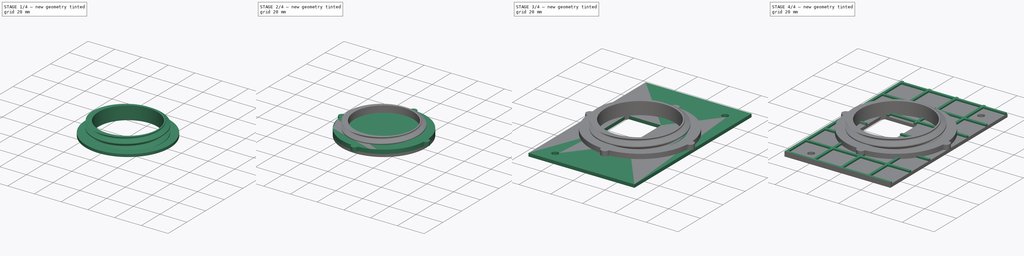
[diagram: build sequence overview — one tinted view per stage of 4, left to right]
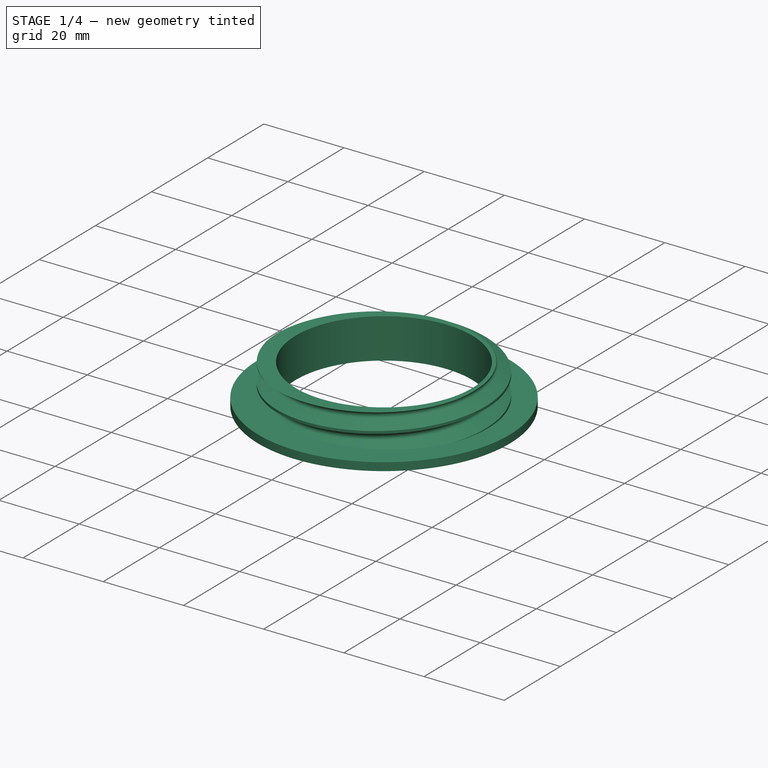
[diagram: stage 1 of 4 — iso view after this stage's code; geometry added in this stage tinted green]
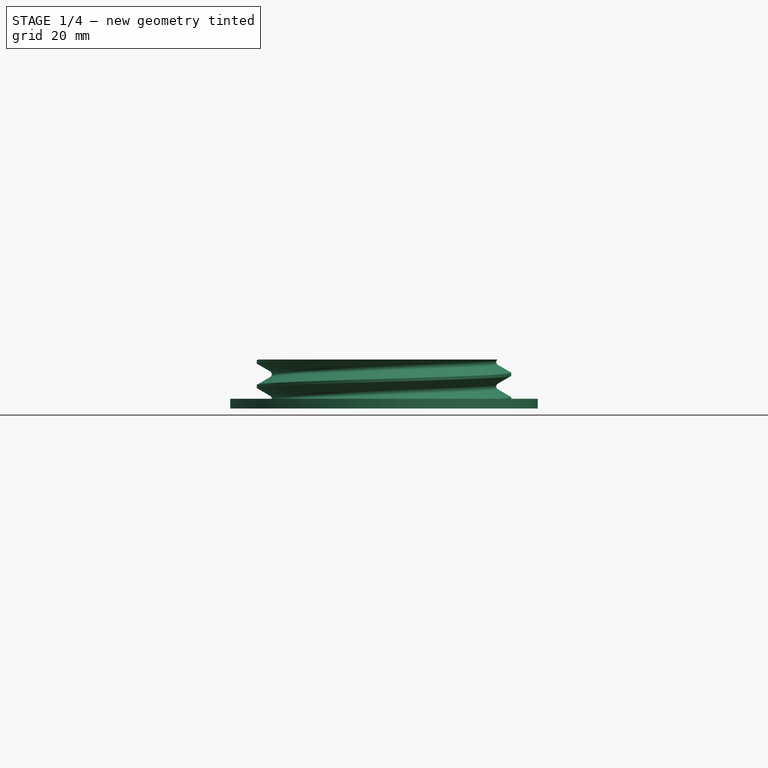
[diagram: stage 1 of 4 — front view after this stage's code; geometry added in this stage tinted green]
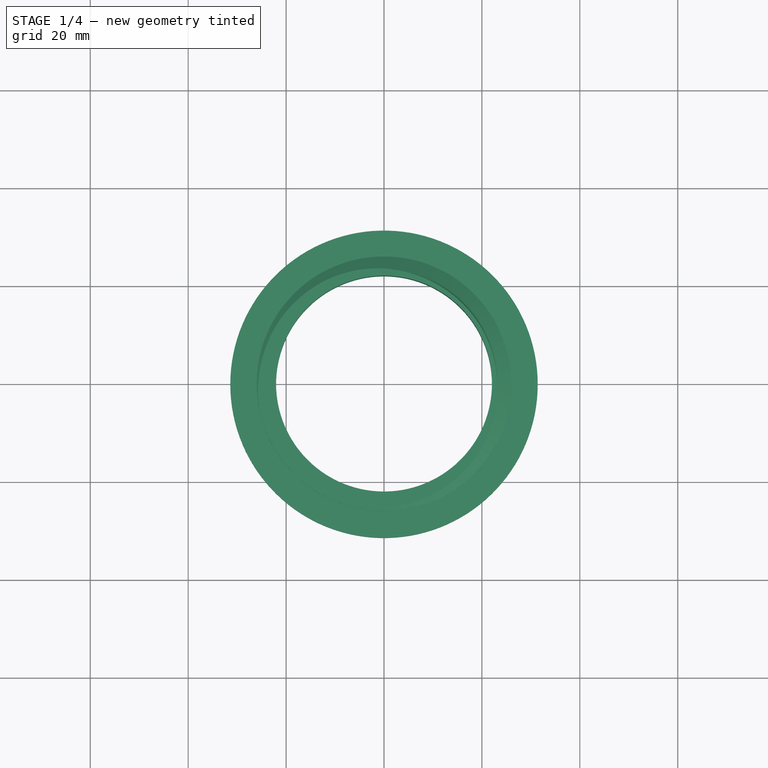
[diagram: stage 1 of 4 — top view after this stage's code; geometry added in this stage tinted green]
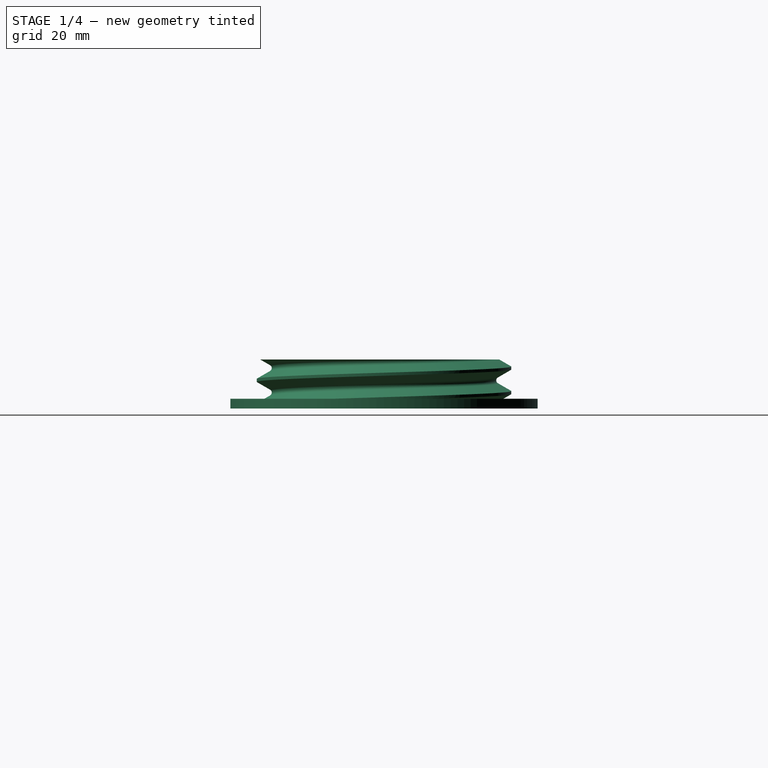
[diagram: stage 1 of 4 — right view after this stage's code; geometry added in this stage tinted green]
FCSTD DOCUMENT  (FreeCAD 1.1R41728 (Git))
Label: Вставка
License: All rights reserved
LicenseURL: https://en.wikipedia.org/wiki/All_rights_reserved
objects: Sketcher::SketchObject×5, PartDesign::Pad×4, App::Point×3, PartDesign::Body×3, PartDesign::LinearPattern×2, App::DocumentObjectGroup×2, Part::FeaturePython×2, Part::Cut×2, PartDesign::MultiTransform×1, PartDesign::Pocket×1, PartDesign::Revolution×1, PartDesign::SubShapeBinder×1, PartDesign::PolarPattern×1
note: 44 computed .brp shape members not serialized (recipe doc carries the construction recipe); baked Part::Feature solids carry a one-line shape summary decoded from their .brp

FEATURE [PartDesign::Body] Body  label="Пластина"
  AllowCompound = false
  Group = -> [Sketch,Pad,Sketch002,Pad002,MultiTransform,LinearPattern,LinearPattern002,Sketch003,Pocket]
  Origin = -> Origin
  Tip = -> Pocket
FEATURE [App::DocumentObjectGroup] Group  label="Внутрення накладка"
  Group = -> [Body]
FEATURE [App::Point] Origin005  label="Начало координат004"
  Role = Origin
FEATURE [Sketcher::SketchObject] Sketch004
  ArcFitTolerance = 1e-06
  AttachmentSupport = -> [Origin004]
  ExternalTypes = [0]
  FullyConstrained = true
  MakeInternals = false
  MapMode = 5
  Placement = pos=(0,0,0) rot=(1,0,0;1.5708rad)
  sketch-geometry (6):
    g0: LineSegment StartX=22.05 StartY=10 StartZ=0 EndX=22.05 EndY=0 EndZ=0
    g1: LineSegment StartX=22.05 StartY=0 StartZ=0 EndX=31.4 EndY=0 EndZ=0
    g2: LineSegment StartX=31.4 StartY=0 StartZ=0 EndX=31.4 EndY=2 EndZ=0
    g3: LineSegment StartX=31.4 StartY=2 StartZ=0 EndX=26.05 EndY=2 EndZ=0
    g4: LineSegment StartX=26.05 StartY=2 StartZ=0 EndX=26.05 EndY=10 EndZ=0
    g5: LineSegment StartX=26.05 StartY=10 StartZ=0 EndX=22.05 EndY=10 EndZ=0
  constraints (18):
    c: Vertical(g0)
    c: Coincident(g0,g1)
    c: Coincident(g1,g2)
    c: Coincident(g2,g3)
    c: Coincident(g3,g4)
    c: Coincident(g4,g5)
    c: Coincident(g5,g0)
    c: DistanceY(g2,g2) = 2
    c: DistanceY(g1,g4) = 10
    c: Horizontal(g1)
    c: Horizontal(g3)
    c: Horizontal(g5)
    c: Vertical(g4)
    c: DistanceX(g5,g5) = 4
    c: Vertical(g2)
    c: DistanceX(g-1,g0) = 22.05
    c: PointOnObject(g0,g-1)
    c: DistanceX(g-1,g1) = 31.4
FEATURE [PartDesign::Revolution] Revolution
  Angle = 360
  Angle2 = 60
  Axis = (0,2e-16,1)
  Base = (0,0,0)
  Profile = -> Sketch004
  ReferenceAxis = -> Sketch004 [V_Axis]
  Refine = true
  Reversed = true
  Suppressed = false
  Type = 0
FEATURE [PartDesign::Body] Body002  label="Тело"
  AllowCompound = false
  Group = -> [Sketch004,Revolution]
  Origin = -> Origin004
  Tip = -> Revolution
FEATURE [Part::FeaturePython] ScrewDie  label="(M52)x20-Плашка"  # WARN: FeaturePython — macro-defined, semantics opaque (R4)
  BaseObject = -> Body002 [Revolution.Edge7]
  Diameter = 25
  DiameterCustom = 6
  Invert = false
  LeftHanded = false
  Length = 20
  MatchOuter = false
  OffsetAngle = 0
  PitchCustom = 1
  Placement = pos=(0,4e-16,2) rot=(-1,0,0;3.14159rad)
  Thread = true
  Type = 0
FEATURE [Part::Cut] Cut001
  Base = -> Body002
  Refine = true
  Tool = -> ScrewDie
FEATURE [App::DocumentObjectGroup] Group002  label="Муфта"
  Group = -> [Cut,Cut001]
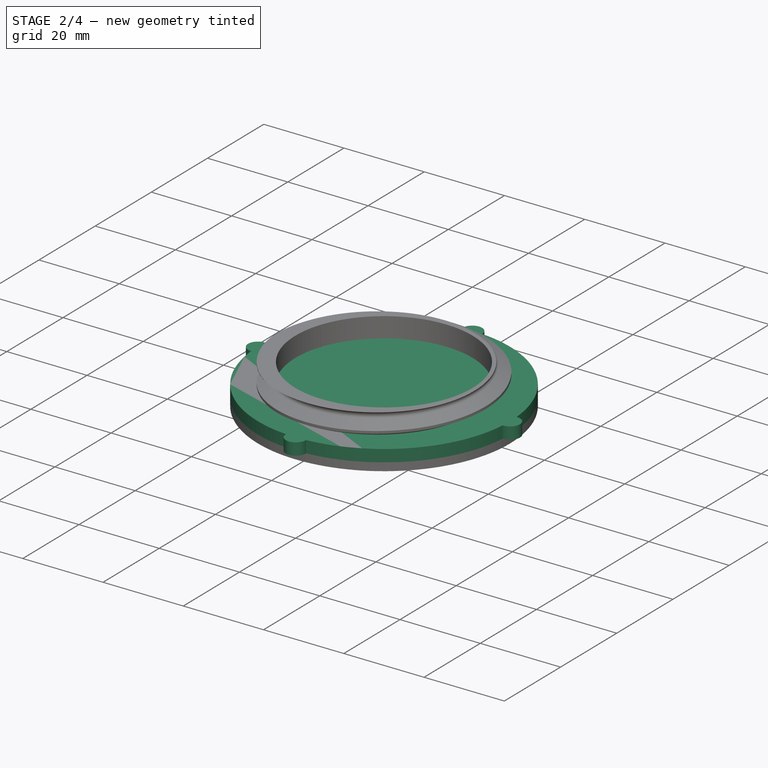
[diagram: stage 2 of 4 — iso view after this stage's code; geometry added in this stage tinted green]
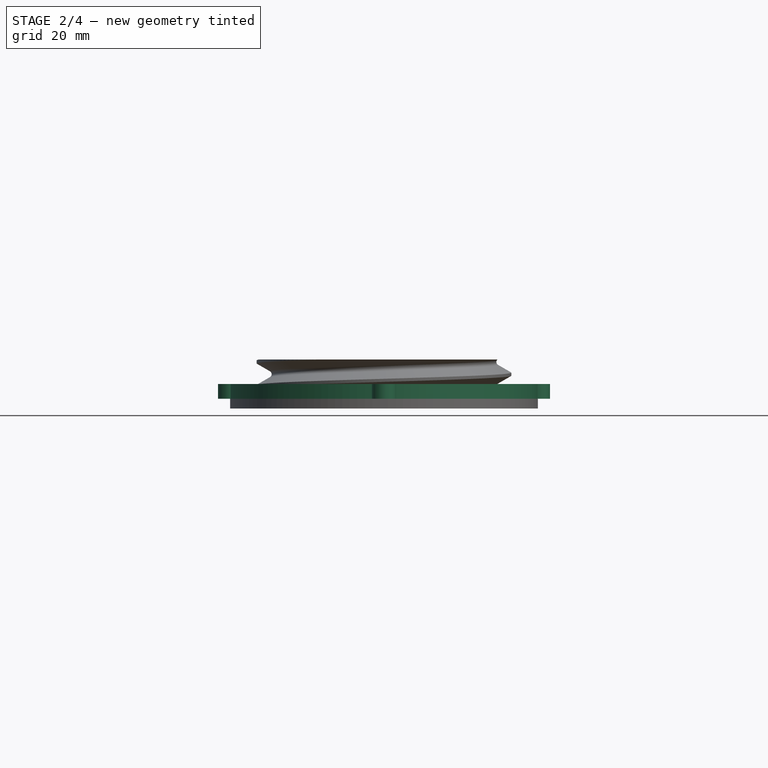
[diagram: stage 2 of 4 — front view after this stage's code; geometry added in this stage tinted green]
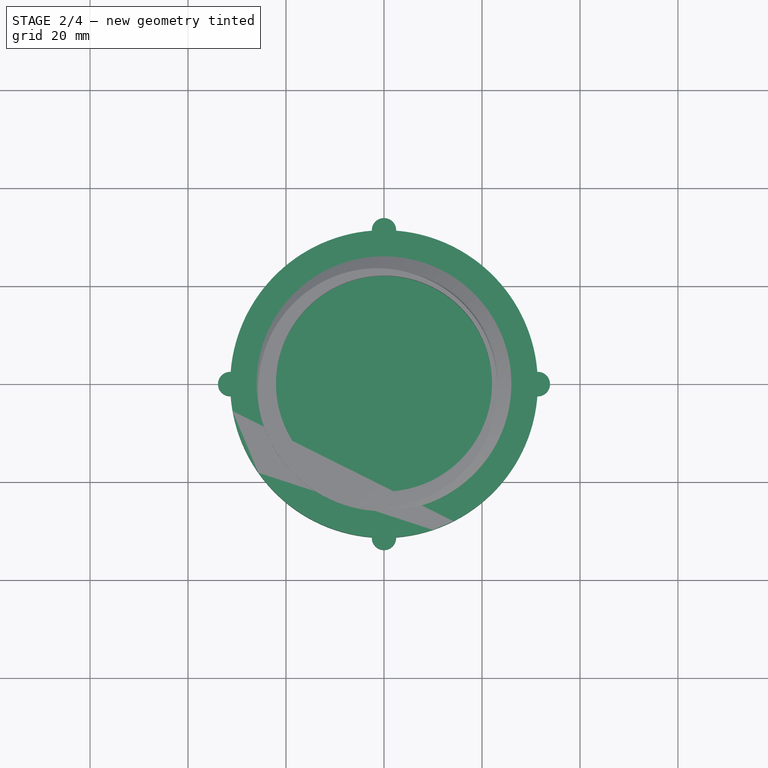
[diagram: stage 2 of 4 — top view after this stage's code; geometry added in this stage tinted green]
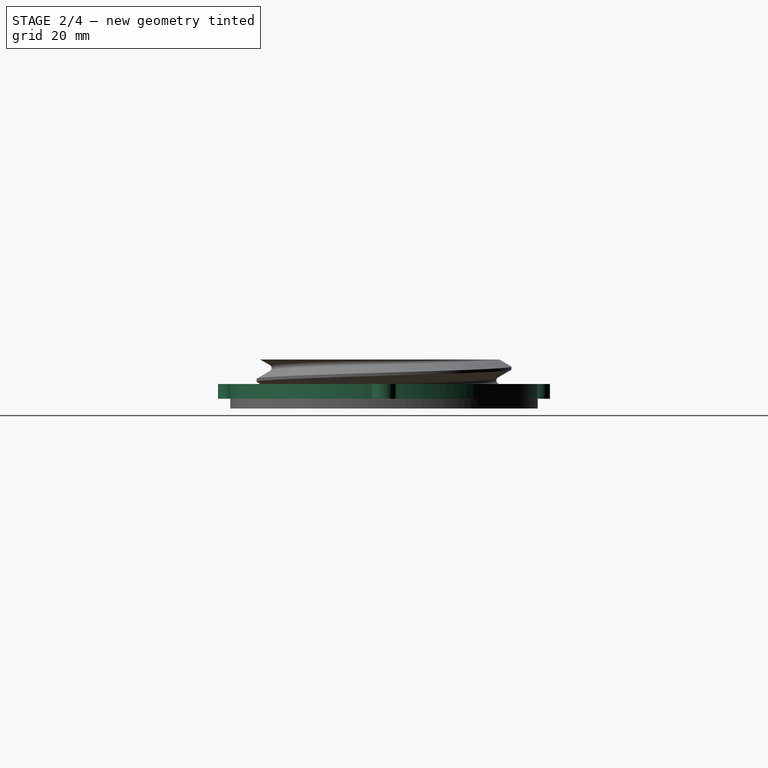
[diagram: stage 2 of 4 — right view after this stage's code; geometry added in this stage tinted green]
FEATURE [App::Point] Origin007  label="Начало координат006"
  Role = Origin
FEATURE [PartDesign::SubShapeBinder] Binder001
  BindCopyOnChange = 0
  BindMode = 0
  ClaimChildren = false
  Context = -> Body003 [Binder001.]
  Fuse = false
  MakeFace = true
  OffsetFill = false
  OffsetIntersection = false
  OffsetJoinType = 0
  OffsetOpenResult = false
  PartialLoad = false
  Refine = true
  Relative = true
  Support = -> [Body002[Revolution.Edge5]]
  _Version = 2
FEATURE [PartDesign::Pad] Pad003
  Direction = (0,2e-16,1)
  Length = 3
  Length2 = 10
  Profile = -> Binder001
  Refine = true
  Suppressed = false
  Type = 0
FEATURE [Sketcher::SketchObject] Sketch005
  ArcFitTolerance = 1e-06
  AttachmentSupport = -> [Pad003]
  ExternalGeometry = -> [Pad003]
  ExternalTypes = [0]
  FullyConstrained = false
  MakeInternals = false
  MapMode = 5
  Placement = pos=(0,1.1e-15,5) rot=(0,0,1;0rad)
  sketch-geometry (2):
    g0: ArcOfCircle CenterX=0 CenterY=0 CenterZ=0 NormalX=0 NormalY=0 NormalZ=1 AngleXU=0 Radius=31.4 StartAngle=1.6499 EndAngle=7.77488
    g1: ArcOfCircle CenterX=0 CenterY=31.4 CenterZ=0 NormalX=0 NormalY=0 NormalZ=1 AngleXU=0 Radius=2.48315 StartAngle=6.24363 EndAngle=9.46433
  constraints (6):
    c: Coincident(g0,g-1)
    c: PointOnObject(g0,g-3)
    c: Coincident(g1,g0)
    c: Coincident(g0,g1)
    c: PointOnObject(g1,g-3)
    c: PointOnObject(g1,g-2)
FEATURE [PartDesign::Pad] Pad004
  BaseFeature = -> Pad003
  Direction = (0,0,1)
  Length = 10
  Length2 = 10
  Profile = -> Sketch005
  ReferenceAxis = -> Sketch005 [N_Axis]
  Refine = true
  Suppressed = false
  Type = 3
  UpToFace = -> Pad003 [Face2]
FEATURE [PartDesign::PolarPattern] PolarPattern
  Angle = 360
  Axis = -> Sketch005 [N_Axis]
  BaseFeature = -> Pad004
  Mode = 0
  Occurrences = 4
  Offset = 120
  Originals = -> [Pad004]
  Refine = true
  Suppressed = false
  TransformMode = 0
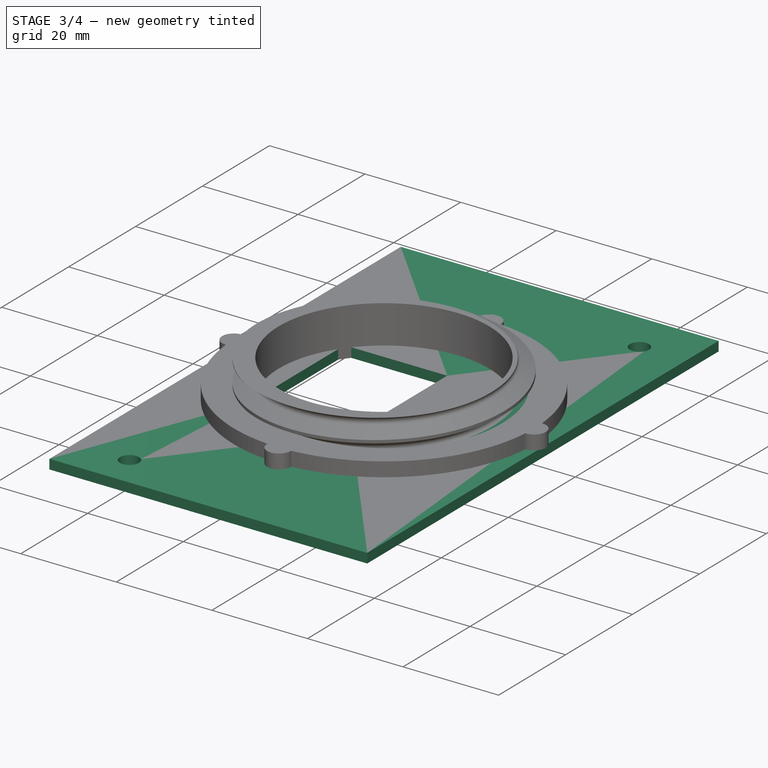
[diagram: stage 3 of 4 — iso view after this stage's code; geometry added in this stage tinted green]
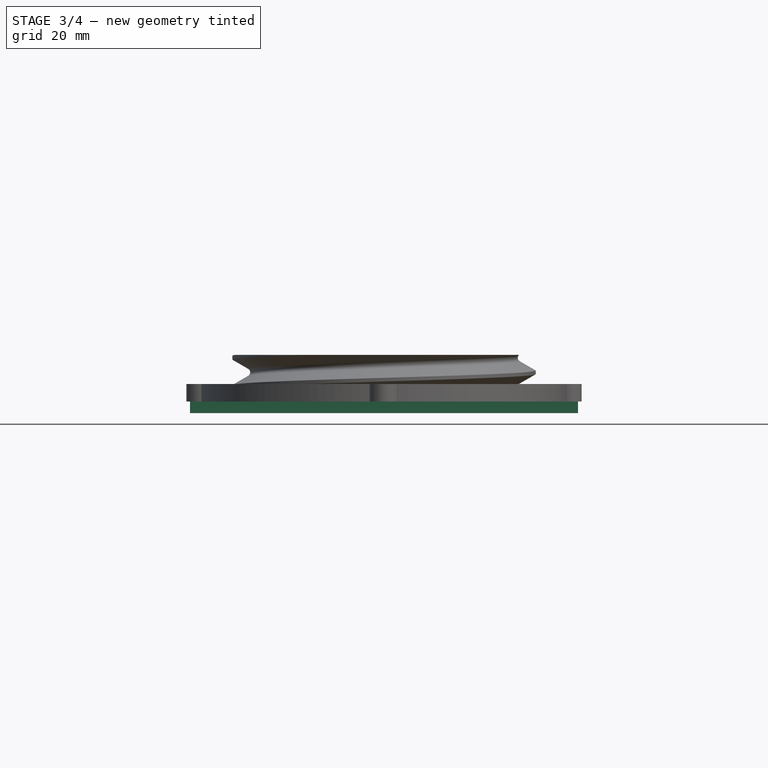
[diagram: stage 3 of 4 — front view after this stage's code; geometry added in this stage tinted green]
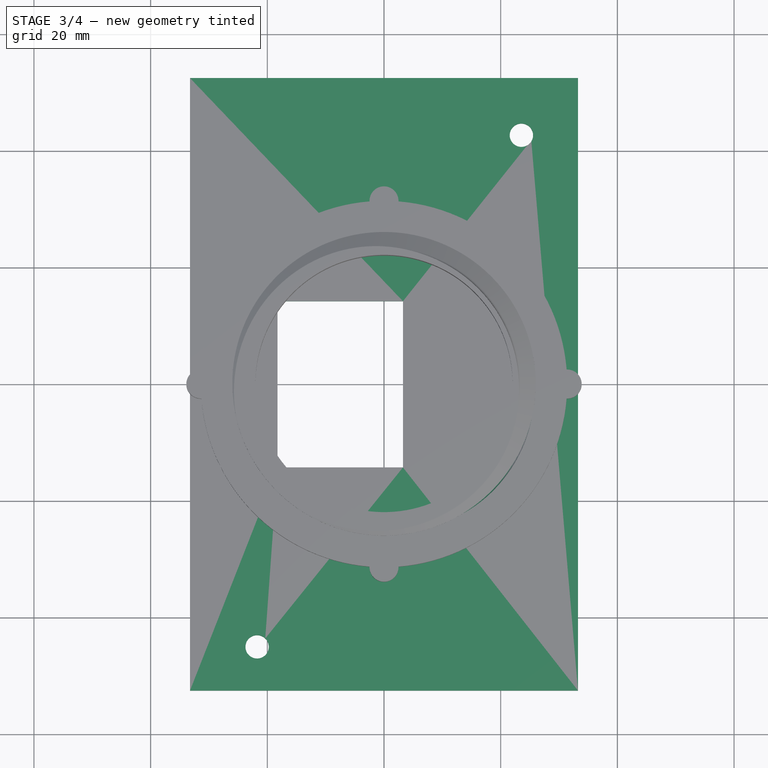
[diagram: stage 3 of 4 — top view after this stage's code; geometry added in this stage tinted green]
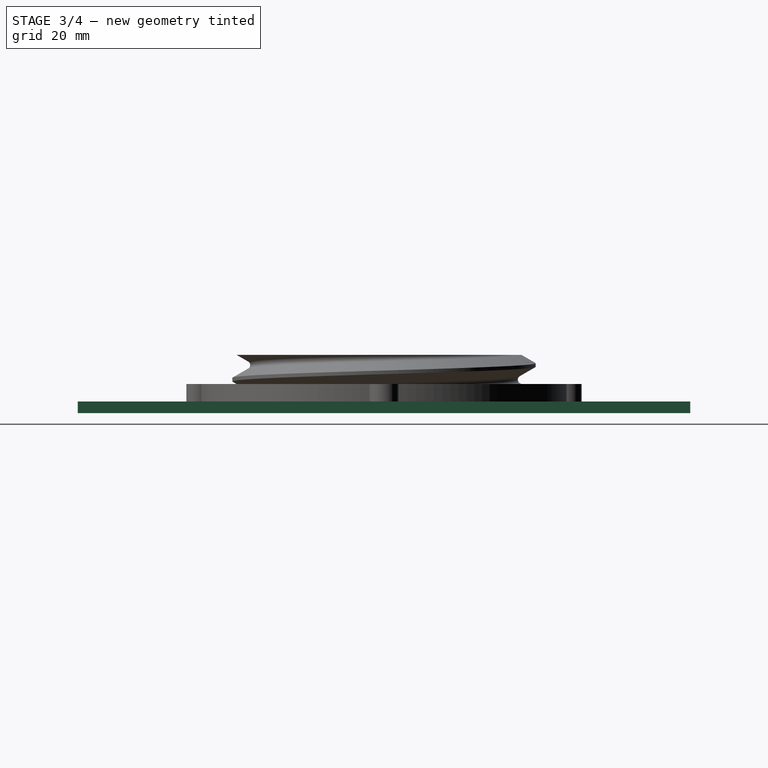
[diagram: stage 3 of 4 — right view after this stage's code; geometry added in this stage tinted green]
FEATURE [App::Point] Origin001  label="Начало координат"
  Role = Origin
FEATURE [Sketcher::SketchObject] Sketch
  ArcFitTolerance = 1e-06
  AttachmentSupport = -> [Origin]
  ExternalTypes = [0]
  FullyConstrained = true
  MakeInternals = false
  MapMode = 5
  sketch-geometry (15):
    g0: LineSegment StartX=-33.25 StartY=-52.5 StartZ=0 EndX=33.25 EndY=-52.5 EndZ=0
    g1: LineSegment StartX=33.25 StartY=-52.5 StartZ=0 EndX=33.25 EndY=52.5 EndZ=0
    g2: LineSegment StartX=33.25 StartY=52.5 StartZ=0 EndX=-33.25 EndY=52.5 EndZ=0
    g3: LineSegment StartX=-33.25 StartY=52.5 StartZ=0 EndX=-33.25 EndY=-52.5 EndZ=0
    g4: GeomPoint [constr] X=0 Y=0 Z=0
    g5: Circle CenterX=-21.75 CenterY=-45 CenterZ=0 NormalX=0 NormalY=0 NormalZ=1 AngleXU=0 Radius=2
    g6: Circle CenterX=23.55 CenterY=42.7 CenterZ=0 NormalX=0 NormalY=0 NormalZ=1 AngleXU=0 Radius=2
    g7: GeomPoint X=25.55 Y=42.7 Z=0
    g8: GeomPoint X=23.55 Y=44.7 Z=0
    g9: GeomPoint X=-23.75 Y=-45 Z=0
    g10: GeomPoint X=-21.75 Y=-47 Z=0
    g11: LineSegment StartX=-18.25 StartY=14.25 StartZ=0 EndX=-18.25 EndY=-14.25 EndZ=0
    g12: LineSegment StartX=-18.25 StartY=-14.25 StartZ=0 EndX=3.25 EndY=-14.25 EndZ=0
    g13: LineSegment StartX=3.25 StartY=-14.25 StartZ=0 EndX=3.25 EndY=14.25 EndZ=0
    g14: LineSegment StartX=3.25 StartY=14.25 StartZ=0 EndX=-18.25 EndY=14.25 EndZ=0
  constraints (39):
    c: Coincident(g0,g1)
    c: Coincident(g1,g2)
    c: Coincident(g2,g3)
    c: Coincident(g3,g0)
    c: Horizontal(g0)
    c: Horizontal(g2)
    c: Vertical(g1)
    c: Vertical(g3)
    c: Symmetric(g2,g0,g4)
    c: Coincident(g4,g-1)
    c: Diameter(g6) = 4
    c: Equal(g6,g5)
    c: PointOnObject(g7,g6)
    c: PointOnObject(g8,g6)
    c: Distance(g8,g2) = 7.8
    c: Distance(g7,g1) = 7.7
    c: PointOnObject(g9,g5)
    c: PointOnObject(g10,g5)
    c: Distance(g10,g0) = 5.5
    c: Distance(g9,g3) = 9.5
    c: Horizontal(g9,g5)
    c: Vertical(g10,g5)
    c: Horizontal(g6,g7)
    c: Vertical(g6,g8)
    c: DistanceX(g2,g2) = 66.5
    c: DistanceY(g3,g3) = 105
    c: Coincident(g11,g12)
    c: Coincident(g12,g13)
    c: Coincident(g13,g14)
    c: Coincident(g14,g11)
    c: Vertical(g11)
    c: Horizontal(g12)
    c: Horizontal(g14)
    c: DistanceY(g13,g13) = 28.5  'L3'
    c: DistanceX(g14,g14) = 21.5  'L4'
    c: Distance(g3,g11) = 15
    c: Symmetric(g12,g13,g-1)
    c: DistanceX(g0,g0) = 66.5  'l1'
    c: DistanceY(g1,g1) = 105  'l2'
FEATURE [PartDesign::Pad] Pad
  Direction = (0,0,1)
  Length = 2
  Length2 = 10
  Profile = -> Sketch
  ReferenceAxis = -> Sketch [N_Axis]
  Refine = true
  Suppressed = false
  Type = 0
FEATURE [Part::FeaturePython] ScrewTap  label="(M52)x20-Метчик"  # WARN: FeaturePython — macro-defined, semantics opaque (R4)
  Diameter = 25
  DiameterCustom = 6
  Invert = false
  LeftHanded = false
  Length = 20
  MatchOuter = false
  OffsetAngle = 0
  PitchCustom = 1
  Placement = pos=(0,0,13) rot=(0,0,1;0rad)
  Thread = true
  Type = 2
FEATURE [PartDesign::Body] Body003  label="Тело001"
  AllowCompound = false
  Group = -> [Binder001,Pad003,Sketch005,Pad004,PolarPattern]
  Origin = -> Origin006
  Tip = -> PolarPattern
FEATURE [Part::Cut] Cut
  Base = -> Body003
  Refine = true
  Tool = -> ScrewTap
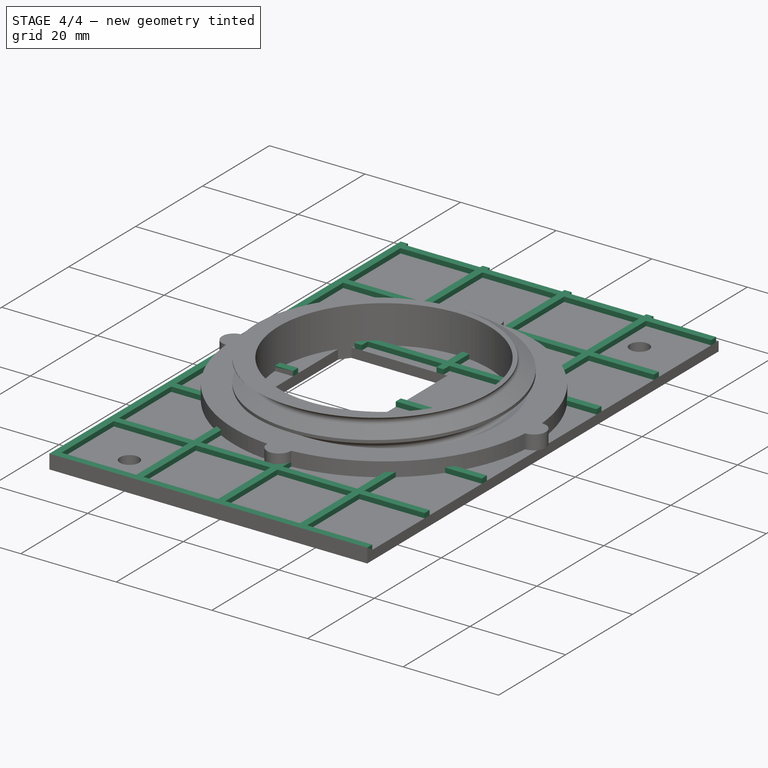
[diagram: stage 4 of 4 — iso view after this stage's code; geometry added in this stage tinted green]
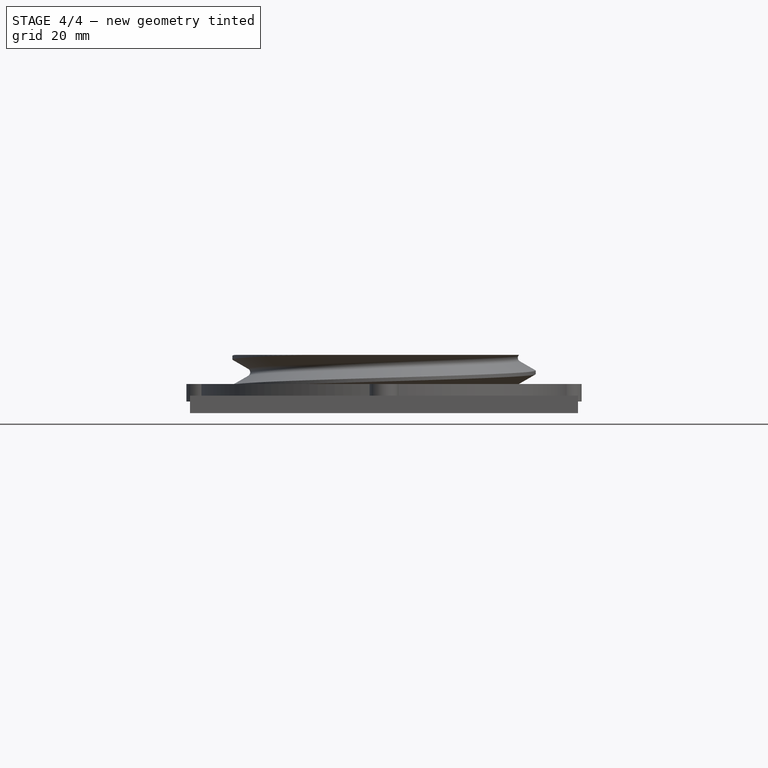
[diagram: stage 4 of 4 — front view after this stage's code; geometry added in this stage tinted green]
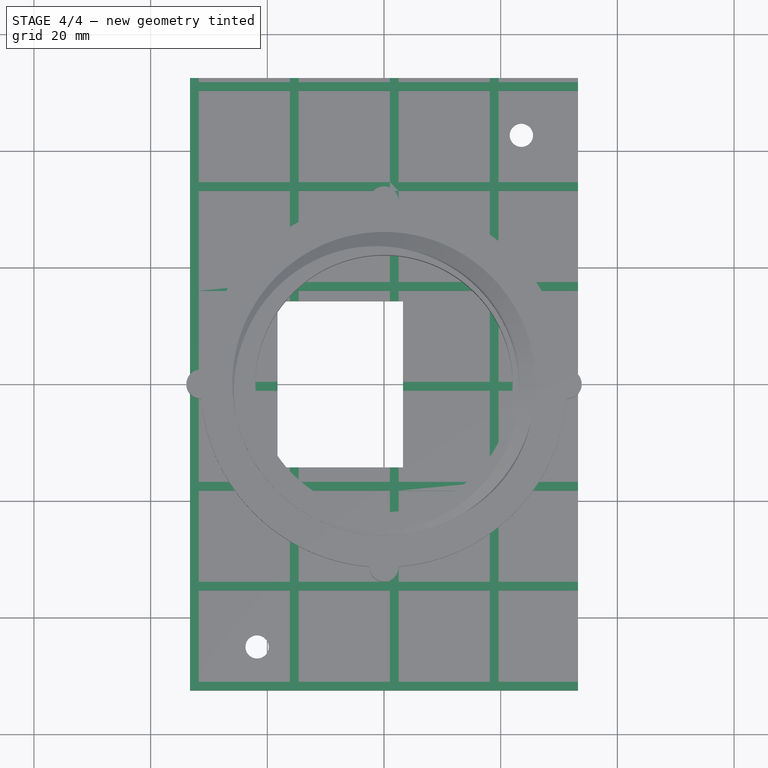
[diagram: stage 4 of 4 — top view after this stage's code; geometry added in this stage tinted green]
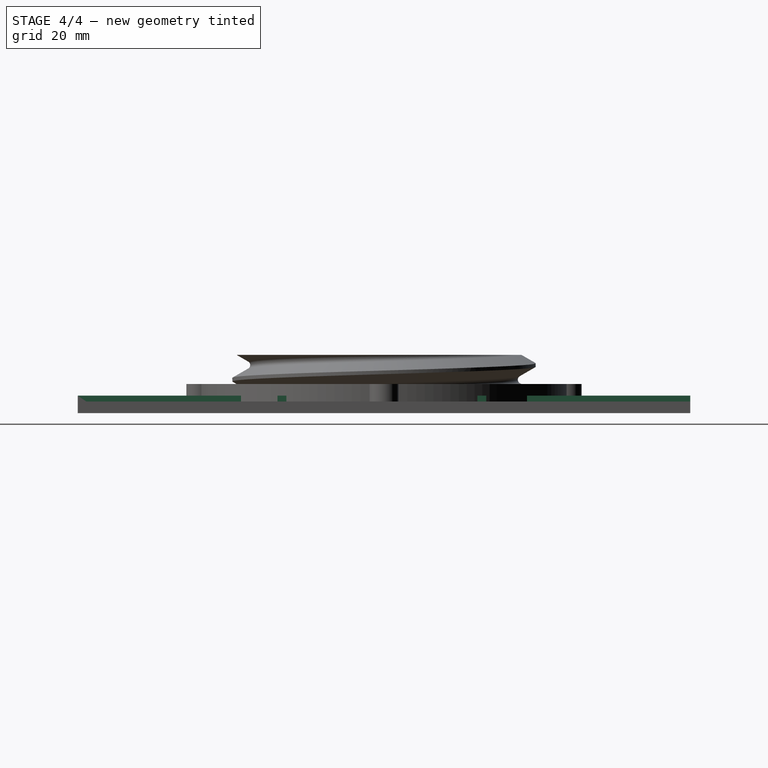
[diagram: stage 4 of 4 — right view after this stage's code; geometry added in this stage tinted green]
FEATURE [Sketcher::SketchObject] Sketch002
  ArcFitTolerance = 1e-06
  AttachmentSupport = -> [Pad]
  ExternalGeometry = -> [Pad]
  ExternalTypes = [0,0]
  FullyConstrained = true
  MakeInternals = false
  MapMode = 5
  Placement = pos=(0,0,2) rot=(0,0,1;0rad)
  expr: Constraints[22] = Sketch.Constraints.l1 / 4 + 2 mm
  sketch-geometry (9):
    g0: LineSegment StartX=-33.25 StartY=-52.5 StartZ=0 EndX=-14.625 EndY=-52.5 EndZ=0
    g1: LineSegment StartX=-14.625 StartY=-52.5 StartZ=0 EndX=-14.625 EndY=-33.875 EndZ=0
    g2: LineSegment StartX=-14.625 StartY=-33.875 StartZ=0 EndX=-33.25 EndY=-33.875 EndZ=0
    g3: LineSegment StartX=-33.25 StartY=-33.875 StartZ=0 EndX=-33.25 EndY=-52.5 EndZ=0
    g4: LineSegment StartX=-31.75 StartY=-51 StartZ=0 EndX=-16.125 EndY=-51 EndZ=0
    g5: LineSegment StartX=-16.125 StartY=-51 StartZ=0 EndX=-16.125 EndY=-35.375 EndZ=0
    g6: LineSegment StartX=-16.125 StartY=-35.375 StartZ=0 EndX=-31.75 EndY=-35.375 EndZ=0
    g7: LineSegment StartX=-31.75 StartY=-35.375 StartZ=0 EndX=-31.75 EndY=-51 EndZ=0
    g8: GeomPoint X=-23.9375 Y=-43.1875 Z=0
  constraints (23):
    c: Coincident(g0,g1)
    c: Coincident(g1,g2)
    c: Coincident(g2,g3)
    c: Coincident(g3,g0)
    c: Horizontal(g0)
    c: Horizontal(g2)
    c: Vertical(g1)
    c: Vertical(g3)
    c: Coincident(g0,g-4)
    c: Coincident(g4,g5)
    c: Coincident(g5,g6)
    c: Coincident(g6,g7)
    c: Coincident(g7,g4)
    c: Horizontal(g4)
    c: Horizontal(g6)
    c: Vertical(g5)
    c: Vertical(g7)
    c: Equal(g5,g6)
    c: Equal(g1,g2)
    c: Distance(g2,g6) = 1.5
    c: Symmetric(g0,g1,g8)
    c: Symmetric(g4,g5,g8)
    c: DistanceX(g2,g2) = 18.625
FEATURE [PartDesign::Pad] Pad002
  BaseFeature = -> Pad
  Direction = (0,0,1)
  Length = 1
  Length2 = 10
  Profile = -> Sketch002
  ReferenceAxis = -> Sketch002 [N_Axis]
  Refine = true
  Suppressed = false
  Type = 0
FEATURE [PartDesign::LinearPattern] LinearPattern
  Direction = -> Sketch002 [H_Axis]
  Length = 51.375
  Mode = 1
  Occurrences = 4
  Offset = 17.125
  Refine = true
  Suppressed = false
  TransformMode = 0
  expr: Length = Sketch.Constraints.l1 / 4 - 2 mm
  expr: Offset = Sketch.Constraints.l1 / 4 + 0.5 mm
FEATURE [PartDesign::LinearPattern] LinearPattern002
  Direction = -> Sketch002 [V_Axis]
  Length = 137.04
  Mode = 1
  Occurrences = 9
  Offset = 17.13
  Refine = true
  Suppressed = false
  TransformMode = 0
FEATURE [PartDesign::MultiTransform] MultiTransform
  BaseFeature = -> Pad002
  Originals = -> [Pad002]
  Refine = true
  Suppressed = false
  TransformMode = 0
  Transformations = -> [LinearPattern,LinearPattern002]
FEATURE [Sketcher::SketchObject] Sketch003
  ArcFitTolerance = 1e-06
  AttachmentSupport = -> [MultiTransform]
  ExternalGeometry = -> [MultiTransform]
  ExternalTypes = [0,0,0,0,0,0,0,0,0,0,0,0,0]
  FullyConstrained = false
  MakeInternals = false
  MapMode = 5
  Placement = pos=(0,0,3) rot=(0,0,1;0rad)
  sketch-geometry (14):
    g0: LineSegment StartX=-33.25 StartY=52.5 StartZ=0 EndX=33.25 EndY=52.5 EndZ=0
    g1: LineSegment StartX=33.25 StartY=52.5 StartZ=0 EndX=33.25 EndY=-52.5 EndZ=0
    g2: LineSegment StartX=-33.25 StartY=52.5 StartZ=0 EndX=-33.25 EndY=-52.5 EndZ=0
    g3: LineSegment StartX=-33.25 StartY=-52.5 StartZ=0 EndX=33.25 EndY=-52.5 EndZ=0
    g4: LineSegment StartX=-16.125 StartY=14.25 StartZ=0 EndX=-14.625 EndY=14.25 EndZ=0
    g5: LineSegment StartX=3.25 StartY=-1.115 StartZ=0 EndX=3.25 EndY=0.39 EndZ=0
    g6: LineSegment StartX=1 StartY=14.25 StartZ=0 EndX=2.5 EndY=14.25 EndZ=0
    g7: LineSegment StartX=-18.25 StartY=-1.115 StartZ=0 EndX=-18.25 EndY=0.39 EndZ=0
    g8: LineSegment StartX=-16.125 StartY=-14.25 StartZ=0 EndX=-14.625 EndY=-14.25 EndZ=0
    g9: LineSegment StartX=1 StartY=-14.25 StartZ=0 EndX=2.5 EndY=-14.25 EndZ=0
    g10: LineSegment StartX=-76.168 StartY=113.844 StartZ=0 EndX=-76.168 EndY=-76.2318 EndZ=0
    g11: LineSegment StartX=-76.168 StartY=-76.2318 StartZ=0 EndX=74.3195 EndY=-76.2318 EndZ=0
    g12: LineSegment StartX=74.3195 StartY=-76.2318 StartZ=0 EndX=74.3195 EndY=113.844 EndZ=0
    g13: LineSegment StartX=74.3195 StartY=113.844 StartZ=0 EndX=-76.168 EndY=113.844 EndZ=0
  constraints (31):
    c: PointOnObject(g0,g-4)
    c: Horizontal(g0)
    c: Coincident(g1,g0)
    c: Vertical(g1)
    c: PointOnObject(g-3,g1)
    c: PointOnObject(g-5,g0)
    c: Coincident(g2,g0)
    c: Coincident(g2,g-4)
    c: Coincident(g3,g2)
    c: Coincident(g3,g1)
    c: Horizontal(g3)
    c: Coincident(g4,g-15)
    c: Coincident(g4,g-13)
    c: Coincident(g5,g-11)
    c: Coincident(g5,g-10)
    c: Coincident(g6,g-13)
    c: Coincident(g6,g-14)
    c: Coincident(g7,g-8)
    c: Coincident(g7,g-9)
    c: Coincident(g8,g-7)
    c: Coincident(g8,g-6)
    c: Coincident(g9,g-6)
    c: Coincident(g9,g-12)
    c: Coincident(g10,g11)
    c: Coincident(g11,g12)
    c: Coincident(g12,g13)
    c: Coincident(g13,g10)
    c: Vertical(g10)
    c: Vertical(g12)
    c: Horizontal(g11)
    c: Horizontal(g13)
FEATURE [PartDesign::Pocket] Pocket
  BaseFeature = -> MultiTransform
  Direction = (0,0,-1)
  Length = 5
  Length2 = 5
  Profile = -> Sketch003
  ReferenceAxis = -> Sketch003 [N_Axis]
  Refine = true
  Suppressed = false
  Type = 0
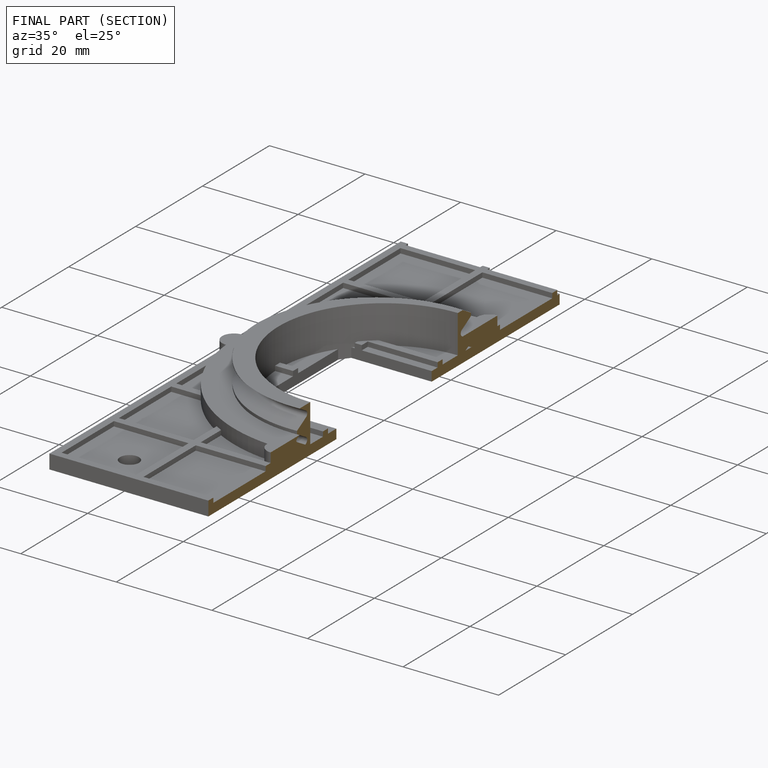
[diagram: finished part — half-section view (interior)]
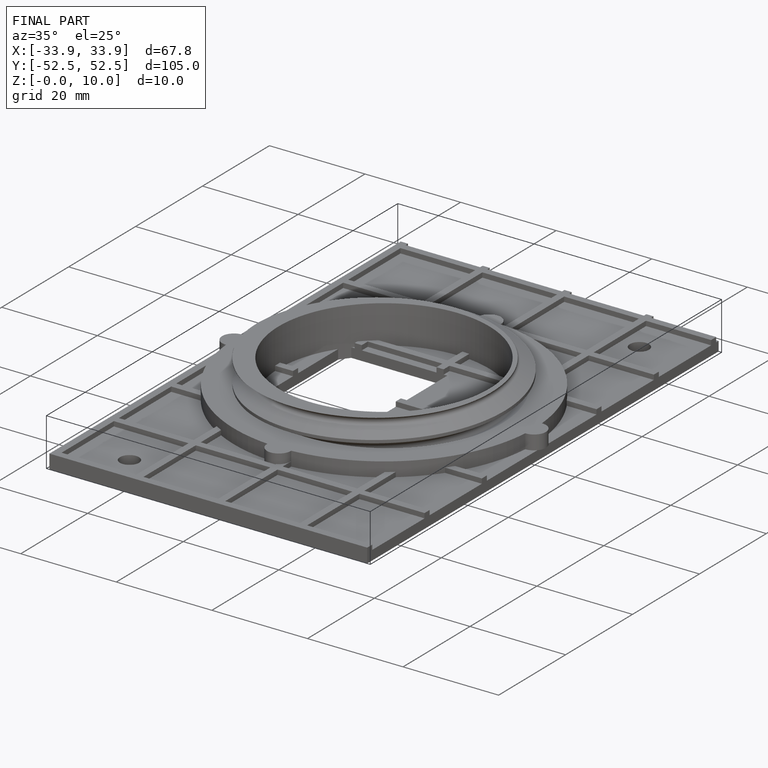
[diagram: finished part — iso view with bounding-box wireframe]
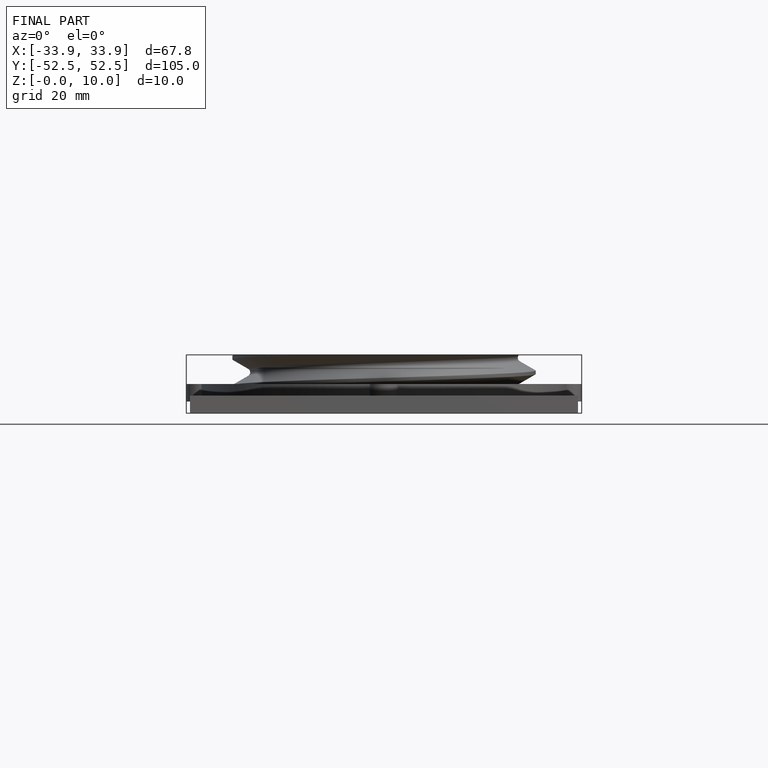
[diagram: finished part — front view with bounding-box wireframe]
